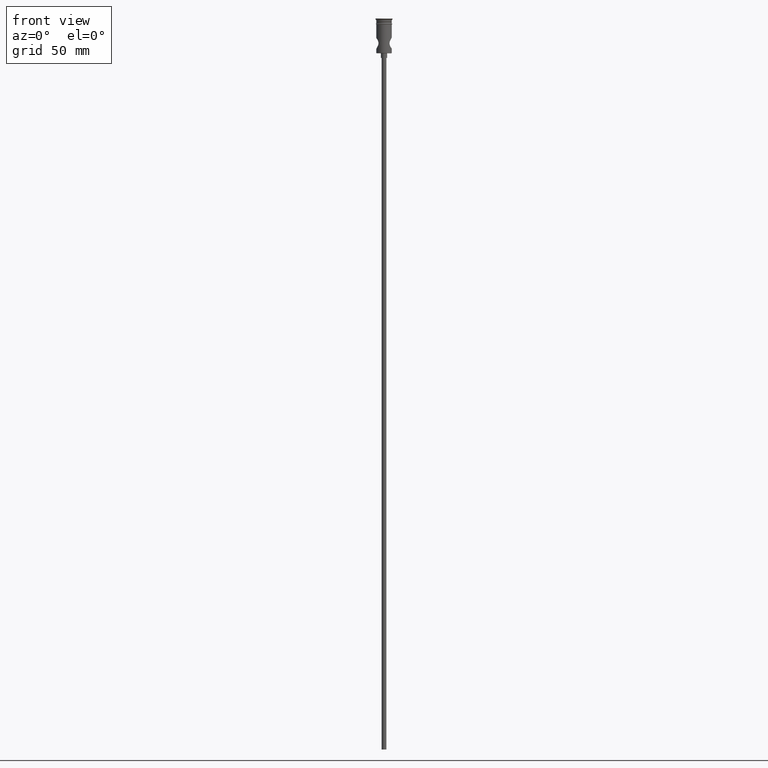
[diagram: clean part render]
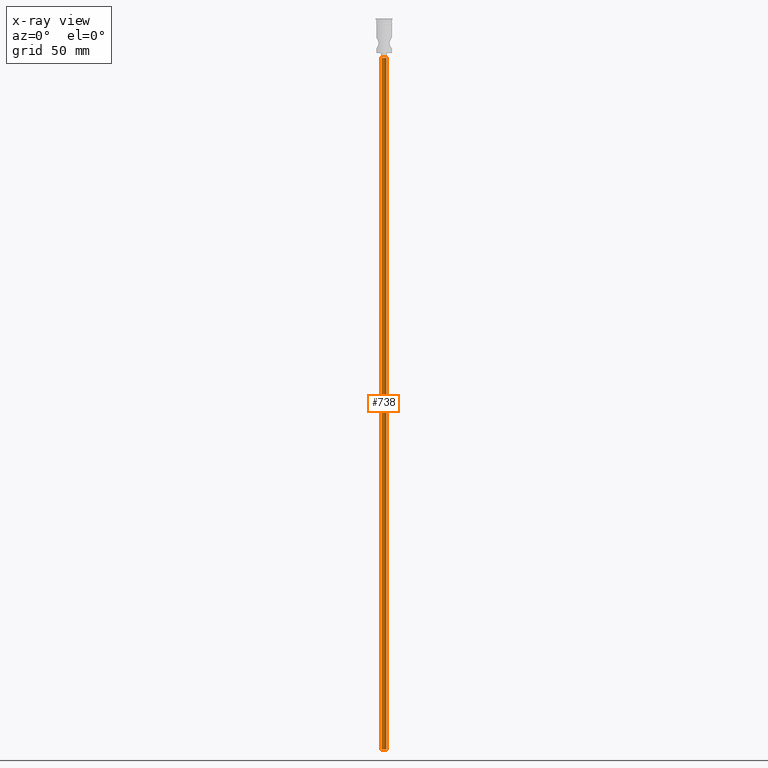
[diagram: x-ray — body ghosted, one internal face saturated and labeled with its STEP entity id]
A machine part, front view, then the same camera in x-ray: the body is ghosted and one INTERNAL B-rep face — a face not visible from any outside direction — is saturated and labeled: STEP entity #738.
In plain terms, the highlighted cylindrical surface (edge-blend (fillet) strip) has radius 1.5 mm, axis along (-0, -0, 1).
Its self-contained STEP definition (entity closure, byte-faithful):
#28 = CARTESIAN_POINT ( 'NONE',  ( -1.500000000000000222, 1.836970198721030181E-16, -472.5000000000000568 ) ) ;
#140 = VECTOR ( 'NONE', #318, 1000.000000000000000 ) ;
#146 = CYLINDRICAL_SURFACE ( 'NONE', #1238, 1.500000000000000222 ) ;
#204 = DIRECTION ( 'NONE',  ( 0.000000000000000000, 0.000000000000000000, -1.000000000000000000 ) ) ;
#218 = DIRECTION ( 'NONE',  ( -0.000000000000000000, -0.000000000000000000, 1.000000000000000000 ) ) ;
#235 = VERTEX_POINT ( 'NONE', #1150 ) ;
#308 = DIRECTION ( 'NONE',  ( 0.000000000000000000, 0.000000000000000000, -1.000000000000000000 ) ) ;
#318 = DIRECTION ( 'NONE',  ( -0.000000000000000000, -0.000000000000000000, 1.000000000000000000 ) ) ;
#349 = ORIENTED_EDGE ( 'NONE', *, *, #483, .T. ) ;
#359 = VECTOR ( 'NONE', #708, 1000.000000000000000 ) ;
#417 = EDGE_CURVE ( 'NONE', #648, #235, #1380, .T. ) ;
#422 = CARTESIAN_POINT ( 'NONE',  ( 0.000000000000000000, 0.000000000000000000, -472.5000000000000568 ) ) ;
#433 = VERTEX_POINT ( 'NONE', #28 ) ;
#451 = AXIS2_PLACEMENT_3D ( 'NONE', #422, #308, #1396 ) ;
#483 = EDGE_CURVE ( 'NONE', #1343, #235, #1011, .T. ) ;
#499 = EDGE_CURVE ( 'NONE', #433, #648, #1236, .T. ) ;
#597 = CARTESIAN_POINT ( 'NONE',  ( 1.500000000000000222, 0.000000000000000000, -472.5000000000000568 ) ) ;
#626 = DIRECTION ( 'NONE',  ( -1.000000000000000000, 0.000000000000000000, 0.000000000000000000 ) ) ;
#648 = VERTEX_POINT ( 'NONE', #1312 ) ;
#661 = FACE_OUTER_BOUND ( 'NONE', #1056, .T. ) ;
#706 = ORIENTED_EDGE ( 'NONE', *, *, #417, .F. ) ;
#708 = DIRECTION ( 'NONE',  ( -0.000000000000000000, -0.000000000000000000, 1.000000000000000000 ) ) ;
#735 = CARTESIAN_POINT ( 'NONE',  ( -1.500000000000000222, 1.836970198721030181E-16, -472.5000000000000568 ) ) ;
#738 = ADVANCED_FACE ( 'NONE', ( #661 ), #146, .T. ) ;
#740 = CARTESIAN_POINT ( 'NONE',  ( 0.000000000000000000, 0.000000000000000000, -25.50000000000000000 ) ) ;
#810 = DIRECTION ( 'NONE',  ( 1.000000000000000000, 0.000000000000000000, 0.000000000000000000 ) ) ;
#866 = CARTESIAN_POINT ( 'NONE',  ( -1.500000000000000222, 1.836970198721030181E-16, -25.50000000000000000 ) ) ;
#895 = AXIS2_PLACEMENT_3D ( 'NONE', #740, #204, #626 ) ;
#966 = ORIENTED_EDGE ( 'NONE', *, *, #499, .F. ) ;
#1011 = CIRCLE ( 'NONE', #895, 1.500000000000000222 ) ;
#1056 = EDGE_LOOP ( 'NONE', ( #966, #1394, #349, #706 ) ) ;
#1150 = CARTESIAN_POINT ( 'NONE',  ( 1.500000000000000222, 0.000000000000000000, -25.50000000000000000 ) ) ;
#1207 = EDGE_CURVE ( 'NONE', #433, #1343, #1280, .T. ) ;
#1210 = CARTESIAN_POINT ( 'NONE',  ( 0.000000000000000000, 0.000000000000000000, -472.5000000000000568 ) ) ;
#1236 = CIRCLE ( 'NONE', #451, 1.500000000000000222 ) ;
#1238 = AXIS2_PLACEMENT_3D ( 'NONE', #1210, #218, #810 ) ;
#1280 = LINE ( 'NONE', #735, #140 ) ;
#1312 = CARTESIAN_POINT ( 'NONE',  ( 1.500000000000000222, 0.000000000000000000, -472.5000000000000568 ) ) ;
#1343 = VERTEX_POINT ( 'NONE', #866 ) ;
#1380 = LINE ( 'NONE', #597, #359 ) ;
#1394 = ORIENTED_EDGE ( 'NONE', *, *, #1207, .T. ) ;
#1396 = DIRECTION ( 'NONE',  ( -1.000000000000000000, 0.000000000000000000, 0.000000000000000000 ) ) ;